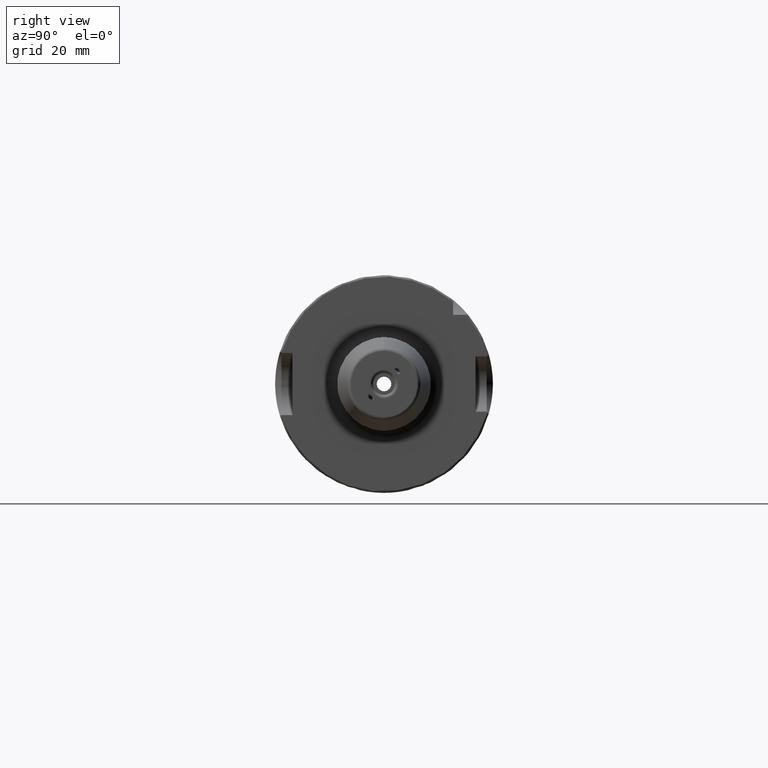
[diagram: clean part render]
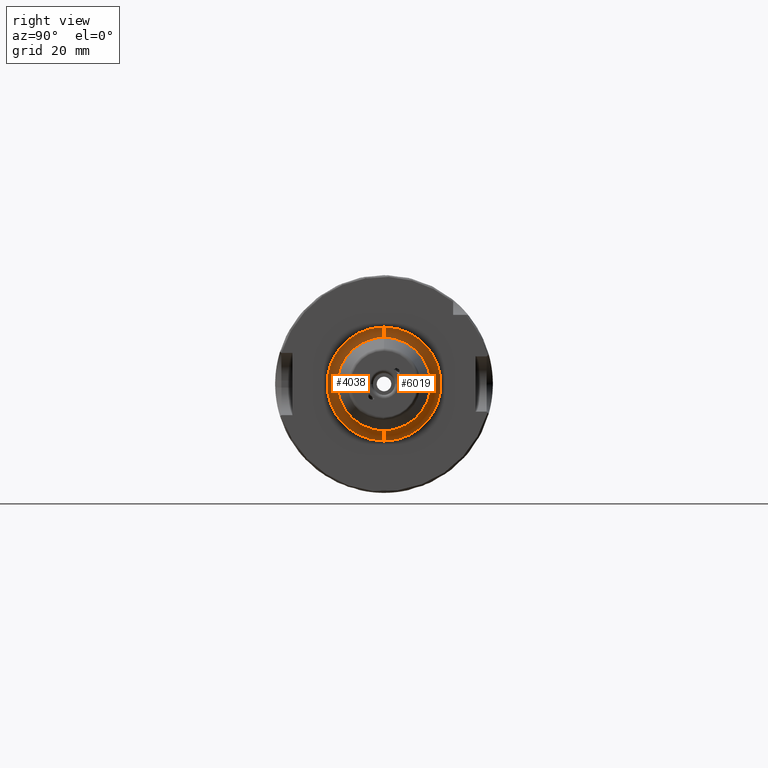
[diagram: same view with one multi-face feature highlighted, each face labeled with its STEP entity id]
A machine part, right view. The highlighted faces form ONE feature: a constant-radius fillet chain: 2 tangent blend faces with common blend radius 3 mm. The faces share edges in the B-rep.
Their STEP definitions:
[1] entity #4038 (Torus):
#754=CARTESIAN_POINT('',(2.9E1,0.E0,0.E0));
#755=DIRECTION('',(1.E0,0.E0,0.E0));
#756=DIRECTION('',(0.E0,0.E0,1.E0));
#757=AXIS2_PLACEMENT_3D('',#754,#755,#756);
#819=CARTESIAN_POINT('',(2.9E1,3.835350370629E-10,1.65E1));
#820=DIRECTION('',(0.E0,-1.E0,2.324455211644E-11));
#821=DIRECTION('',(-1.E0,0.E0,-4.259230005725E-11));
#822=AXIS2_PLACEMENT_3D('',#819,#820,#821);
#864=CARTESIAN_POINT('',(2.6E1,0.E0,0.E0));
#865=DIRECTION('',(1.E0,0.E0,0.E0));
#866=DIRECTION('',(0.E0,0.E0,1.E0));
#867=AXIS2_PLACEMENT_3D('',#864,#865,#866);
#2549=CARTESIAN_POINT('',(2.9E1,-3.835369799532E-10,-1.65E1));
#2550=DIRECTION('',(0.E0,1.E0,-2.324466313874E-11));
#2551=DIRECTION('',(-1.E0,0.E0,4.259348429514E-11));
#2552=AXIS2_PLACEMENT_3D('',#2549,#2550,#2551);
#3106=CARTESIAN_POINT('',(2.6E1,0.E0,1.65E1));
#3107=CARTESIAN_POINT('',(2.6E1,0.E0,-1.65E1));
#3108=VERTEX_POINT('',#3106);
#3109=VERTEX_POINT('',#3107);
#3110=CARTESIAN_POINT('',(2.9E1,0.E0,1.35E1));
#3111=CARTESIAN_POINT('',(2.9E1,0.E0,-1.35E1));
#3112=VERTEX_POINT('',#3110);
#3113=VERTEX_POINT('',#3111);
#4024=CARTESIAN_POINT('',(2.9E1,0.E0,0.E0));
#4025=DIRECTION('',(1.E0,0.E0,0.E0));
#4026=DIRECTION('',(0.E0,2.426333373122E-2,9.997056019830E-1));
#4027=AXIS2_PLACEMENT_3D('',#4024,#4025,#4026);
#4028=TOROIDAL_SURFACE('',#4027,1.65E1,3.E0);
#4030=ORIENTED_EDGE('',*,*,#4029,.F.);
#4032=ORIENTED_EDGE('',*,*,#4031,.T.);
#4033=ORIENTED_EDGE('',*,*,#3960,.T.);
#4035=ORIENTED_EDGE('',*,*,#4034,.F.);
#4036=EDGE_LOOP('',(#4030,#4032,#4033,#4035));
#4037=FACE_OUTER_BOUND('',#4036,.F.);
#4038=ADVANCED_FACE('',(#4037),#4028,.F.);
#758=CIRCLE('',#757,1.35E1);
#823=CIRCLE('',#822,3.E0);
#868=CIRCLE('',#867,1.65E1);
#2553=CIRCLE('',#2552,3.E0);
#3960=EDGE_CURVE('',#3112,#3113,#758,.T.);
#4029=EDGE_CURVE('',#3108,#3109,#868,.T.);
#4031=EDGE_CURVE('',#3108,#3112,#823,.T.);
#4034=EDGE_CURVE('',#3109,#3113,#2553,.T.);
[2] entity #6019 (Torus):
#638=CARTESIAN_POINT('',(2.9E1,0.E0,0.E0));
#639=DIRECTION('',(1.E0,0.E0,0.E0));
#640=DIRECTION('',(0.E0,0.E0,-1.E0));
#641=AXIS2_PLACEMENT_3D('',#638,#639,#640);
#819=CARTESIAN_POINT('',(2.9E1,3.835350370629E-10,1.65E1));
#820=DIRECTION('',(0.E0,-1.E0,2.324455211644E-11));
#821=DIRECTION('',(-1.E0,0.E0,-4.259230005725E-11));
#822=AXIS2_PLACEMENT_3D('',#819,#820,#821);
#869=CARTESIAN_POINT('',(2.6E1,0.E0,0.E0));
#870=DIRECTION('',(1.E0,0.E0,0.E0));
#871=DIRECTION('',(0.E0,0.E0,-1.E0));
#872=AXIS2_PLACEMENT_3D('',#869,#870,#871);
#2549=CARTESIAN_POINT('',(2.9E1,-3.835369799532E-10,-1.65E1));
#2550=DIRECTION('',(0.E0,1.E0,-2.324466313874E-11));
#2551=DIRECTION('',(-1.E0,0.E0,4.259348429514E-11));
#2552=AXIS2_PLACEMENT_3D('',#2549,#2550,#2551);
#3106=CARTESIAN_POINT('',(2.6E1,0.E0,1.65E1));
#3107=CARTESIAN_POINT('',(2.6E1,0.E0,-1.65E1));
#3108=VERTEX_POINT('',#3106);
#3109=VERTEX_POINT('',#3107);
#3110=CARTESIAN_POINT('',(2.9E1,0.E0,1.35E1));
#3111=CARTESIAN_POINT('',(2.9E1,0.E0,-1.35E1));
#3112=VERTEX_POINT('',#3110);
#3113=VERTEX_POINT('',#3111);
#6008=CARTESIAN_POINT('',(2.9E1,0.E0,0.E0));
#6009=DIRECTION('',(1.E0,0.E0,0.E0));
#6010=DIRECTION('',(0.E0,-2.426333373122E-2,-9.997056019830E-1));
#6011=AXIS2_PLACEMENT_3D('',#6008,#6009,#6010);
#6012=TOROIDAL_SURFACE('',#6011,1.65E1,3.E0);
#6013=ORIENTED_EDGE('',*,*,#4073,.F.);
#6014=ORIENTED_EDGE('',*,*,#4034,.T.);
#6015=ORIENTED_EDGE('',*,*,#3847,.T.);
#6016=ORIENTED_EDGE('',*,*,#4031,.F.);
#6017=EDGE_LOOP('',(#6013,#6014,#6015,#6016));
#6018=FACE_OUTER_BOUND('',#6017,.F.);
#6019=ADVANCED_FACE('',(#6018),#6012,.F.);
#642=CIRCLE('',#641,1.35E1);
#823=CIRCLE('',#822,3.E0);
#873=CIRCLE('',#872,1.65E1);
#2553=CIRCLE('',#2552,3.E0);
#3847=EDGE_CURVE('',#3113,#3112,#642,.T.);
#4031=EDGE_CURVE('',#3108,#3112,#823,.T.);
#4034=EDGE_CURVE('',#3109,#3113,#2553,.T.);
#4073=EDGE_CURVE('',#3109,#3108,#873,.T.);